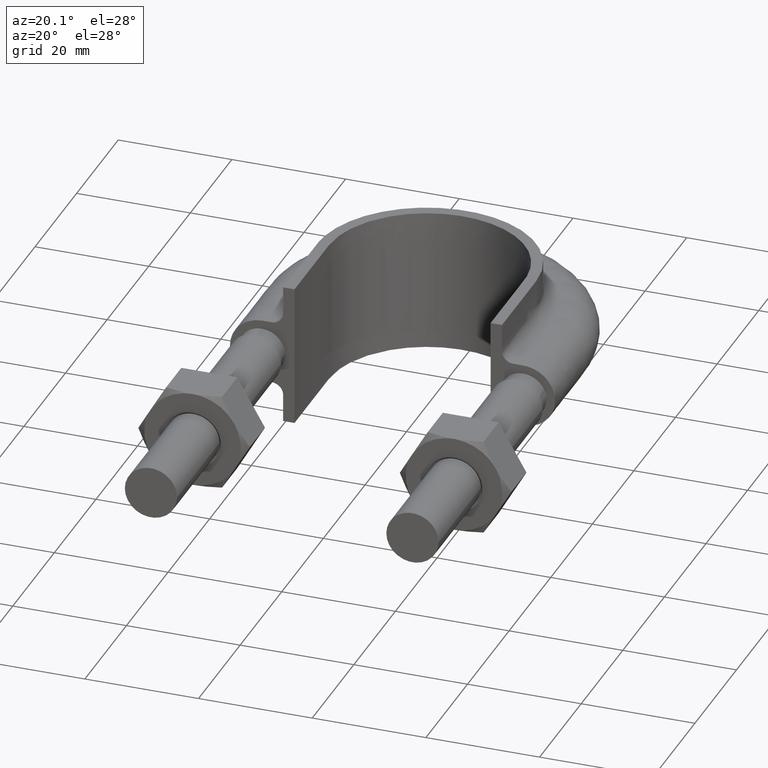
[diagram: clean part render]
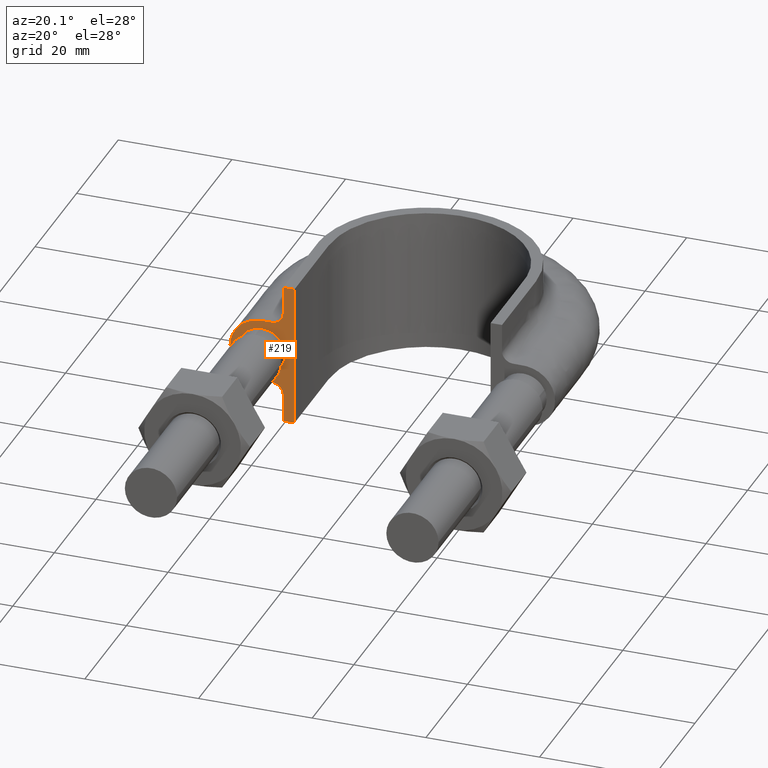
[diagram: same view with one face highlighted and labeled with its STEP entity id]
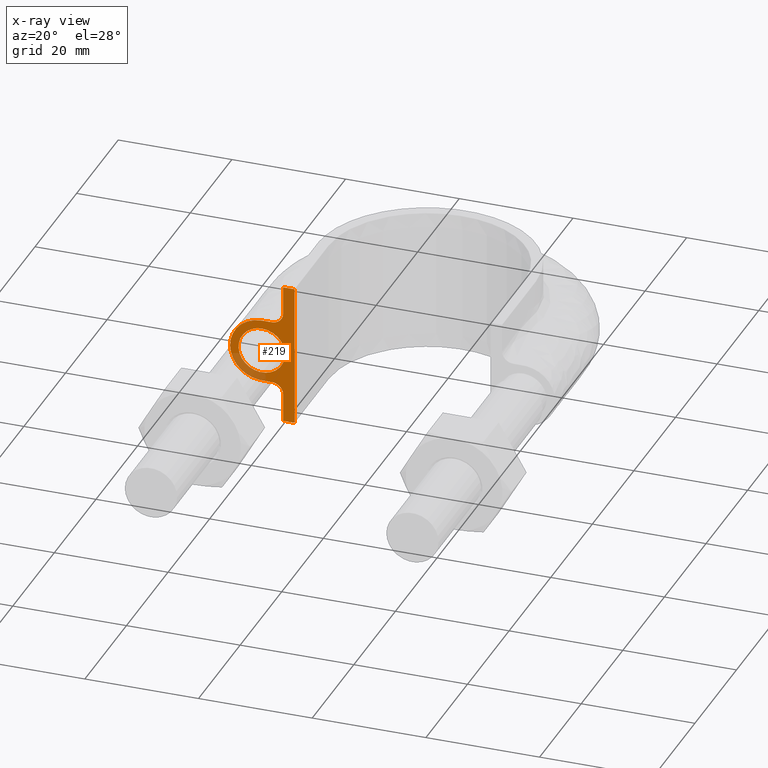
[diagram: x-ray of the same camera — body ghosted, the highlighted face saturated]
A machine part, auxiliary view. The second image highlights one B-rep face of the part: STEP entity #219.
The next image is the same camera in x-ray: the body ghosted, the highlighted face saturated — about 11% of this face is hidden behind the body in this view.
In plain terms, the highlighted planar face has unit normal (0, 1, 0).
Its self-contained STEP definition (entity closure, byte-faithful):
#219 = ADVANCED_FACE( '', ( #296, #297 ), #298, .F. );
#296 = FACE_OUTER_BOUND( '', #468, .T. );
#297 = FACE_BOUND( '', #469, .T. );
#298 = PLANE( '', #470 );
#468 = EDGE_LOOP( '', ( #1465, #1466, #1467, #1468 ) );
#469 = EDGE_LOOP( '', ( #1469 ) );
#470 = AXIS2_PLACEMENT_3D( '', #1470, #1471, #1472 );
#1465 = ORIENTED_EDGE( '', *, *, #2003, .T. );
#1466 = ORIENTED_EDGE( '', *, *, #2004, .F. );
#1467 = ORIENTED_EDGE( '', *, *, #2005, .T. );
#1468 = ORIENTED_EDGE( '', *, *, #2006, .T. );
#1469 = ORIENTED_EDGE( '', *, *, #2007, .T. );
#1470 = CARTESIAN_POINT( '', ( -35.0000000000000, 53.3000000000000, 12.5000000000000 ) );
#1471 = DIRECTION( '', ( 1.83649404852125E-048, 1.00000000000000, 1.49966072182214E-032 ) );
#1472 = DIRECTION( '', ( 1.00000000000000, -3.03858167864314E-064, -1.22460635382238E-016 ) );
#2003 = EDGE_CURVE( '', #2155, #2156, #2157, .T. );
#2004 = EDGE_CURVE( '', #2158, #2156, #2159, .T. );
#2005 = EDGE_CURVE( '', #2158, #2160, #2161, .T. );
#2006 = EDGE_CURVE( '', #2160, #2155, #2162, .T. );
#2007 = EDGE_CURVE( '', #2163, #2163, #2164, .T. );
#2155 = VERTEX_POINT( '', #2405 );
#2156 = VERTEX_POINT( '', #2406 );
#2157 = LINE( '', #2407, #2408 );
#2158 = VERTEX_POINT( '', #2409 );
#2159 = LINE( '', #2410, #2411 );
#2160 = VERTEX_POINT( '', #2412 );
#2161 = B_SPLINE_CURVE_WITH_KNOTS( '', 3, ( #2413, #2414, #2415, #2416, #2417, #2418, #2419, #2420, #2421, #2422, #2423, #2424, #2425, #2426, #2427, #2428, #2429, #2430, #2431, #2432, #2433, #2434, #2435, #2436, #2437, #2438, #2439, #2440, #2441, #2442, #2443 ), .UNSPECIFIED., .F., .F., ( 4, 3, 1, 1, 1, 3, 3, 1, 1, 1, 3, 3, 1, 1, 1, 3, 4 ), ( 1.04083408558608E-017, 0.00230481078821070, 0.00460962157642139, 0.00691443236463208, 0.00921924315284277, 0.0115240539410535, 0.0138288647292641, 0.0161336755174748, 0.0184384863056855, 0.0207432970938962, 0.0230481078821069, 0.0253529186703176, 0.0276577294585283, 0.0299625402467390, 0.0322673510349497, 0.0345721618231603, 0.0368769726113710 ), .UNSPECIFIED. );
#2162 = LINE( '', #2444, #2445 );
#2163 = VERTEX_POINT( '', #2446 );
#2164 = B_SPLINE_CURVE_WITH_KNOTS( '', 3, ( #2447, #2448, #2449, #2450, #2451, #2452, #2453, #2454, #2455, #2456 ), .UNSPECIFIED., .T., .F., ( 4, 1, 1, 1, 1, 1, 1, 4 ), ( 0.000000000000000, 0.00365634574703306, 0.00731269149406611, 0.0109690372410992, 0.0146253829881322, 0.0182817287351653, 0.0219380744821983, 0.0255944202292314 ), .UNSPECIFIED. );
#2405 = CARTESIAN_POINT( '', ( -17.2500000000000, 53.3000000000000, -12.5000000000000 ) );
#2406 = CARTESIAN_POINT( '', ( -17.2500000000000, 53.3000000000000, 12.5000000000000 ) );
#2407 = CARTESIAN_POINT( '', ( -17.2500000000000, 53.3000000000000, -69.9996733561149 ) );
#2408 = VECTOR( '', #3001, 1000.00000000000 );
#2409 = CARTESIAN_POINT( '', ( -19.2500000000000, 53.3000000000000, 12.5000000000000 ) );
#2410 = CARTESIAN_POINT( '', ( -35.0000000000000, 53.3000000000000, 12.5000000000000 ) );
#2411 = VECTOR( '', #3002, 1000.00000000000 );
#2412 = CARTESIAN_POINT( '', ( -19.2500000000000, 53.3000000000000, -12.5000000000000 ) );
#2413 = CARTESIAN_POINT( '', ( -19.2500000000000, 53.3000000000000, 12.5000000000000 ) );
#2414 = CARTESIAN_POINT( '', ( -19.2500000000000, 53.3000000000000, 10.8666666666667 ) );
#2415 = CARTESIAN_POINT( '', ( -19.2500000000000, 53.3000000000000, 9.23333333333333 ) );
#2416 = CARTESIAN_POINT( '', ( -19.2500000000000, 53.3000000000000, 7.60000000000000 ) );
#2417 = CARTESIAN_POINT( '', ( -19.2500000000000, 53.3000000000000, 7.33823584172333 ) );
#2418 = CARTESIAN_POINT( '', ( -19.3541362568359, 53.3000000000000, 6.81470752517000 ) );
#2419 = CARTESIAN_POINT( '', ( -19.7989687109389, 53.3000000000000, 6.14896871093887 ) );
#2420 = CARTESIAN_POINT( '', ( -20.4647075251700, 53.3000000000000, 5.70413625683590 ) );
#2421 = CARTESIAN_POINT( '', ( -20.9882358417233, 53.3000000000000, 5.59999999999999 ) );
#2422 = CARTESIAN_POINT( '', ( -21.2500000000000, 53.3000000000000, 5.59999999999999 ) );
#2423 = CARTESIAN_POINT( '', ( -21.8333333333333, 53.3000000000000, 5.60000000000001 ) );
#2424 = CARTESIAN_POINT( '', ( -22.4166666666667, 53.3000000000000, 5.60000000000001 ) );
#2425 = CARTESIAN_POINT( '', ( -23.0000000000000, 53.3000000000000, 5.60000000000001 ) );
#2426 = CARTESIAN_POINT( '', ( -24.4627416997969, 53.3000000000000, 5.60000000000001 ) );
#2427 = CARTESIAN_POINT( '', ( -27.3882250993908, 53.3000000000000, 4.38822509939087 ) );
#2428 = CARTESIAN_POINT( '', ( -29.2058874503046, 53.3000000000000, 9.94452457394279E-015 ) );
#2429 = CARTESIAN_POINT( '', ( -27.3882250993908, 53.3000000000000, -4.38822509939085 ) );
#2430 = CARTESIAN_POINT( '', ( -24.4627416997969, 53.3000000000000, -5.59999999999999 ) );
#2431 = CARTESIAN_POINT( '', ( -23.0000000000000, 53.3000000000000, -5.59999999999999 ) );
#2432 = CARTESIAN_POINT( '', ( -22.4166666666667, 53.3000000000000, -5.59999999999999 ) );
#2433 = CARTESIAN_POINT( '', ( -21.8333333333333, 53.3000000000000, -5.59999999999999 ) );
#2434 = CARTESIAN_POINT( '', ( -21.2500000000000, 53.3000000000000, -5.59999999999999 ) );
#2435 = CARTESIAN_POINT( '', ( -20.9882358417233, 53.3000000000000, -5.59999999999999 ) );
#2436 = CARTESIAN_POINT( '', ( -20.4647075251700, 53.3000000000000, -5.70413625683590 ) );
#2437 = CARTESIAN_POINT( '', ( -19.7989687109389, 53.3000000000000, -6.14896871093886 ) );
#2438 = CARTESIAN_POINT( '', ( -19.3541362568359, 53.3000000000000, -6.81470752516999 ) );
#2439 = CARTESIAN_POINT( '', ( -19.2500000000000, 53.3000000000000, -7.33823584172332 ) );
#2440 = CARTESIAN_POINT( '', ( -19.2500000000000, 53.3000000000000, -7.59999999999998 ) );
#2441 = CARTESIAN_POINT( '', ( -19.2500000000000, 53.3000000000000, -9.23333333333332 ) );
#2442 = CARTESIAN_POINT( '', ( -19.2500000000000, 53.3000000000000, -10.8666666666666 ) );
#2443 = CARTESIAN_POINT( '', ( -19.2500000000000, 53.3000000000000, -12.5000000000000 ) );
#2444 = CARTESIAN_POINT( '', ( -35.0000000000000, 53.3000000000000, -12.5000000000000 ) );
#2445 = VECTOR( '', #3003, 1000.00000000000 );
#2446 = CARTESIAN_POINT( '', ( -18.9000000000000, 53.3000000000000, 4.33680868994202E-016 ) );
#2447 = CARTESIAN_POINT( '', ( -18.9000000000000, 53.3000000000000, 4.33680868994202E-016 ) );
#2448 = CARTESIAN_POINT( '', ( -18.9000000000000, 53.3000000000000, -1.22184926194408 ) );
#2449 = CARTESIAN_POINT( '', ( -20.0768231851220, 53.3000000000000, -3.66554778583225 ) );
#2450 = CARTESIAN_POINT( '', ( -24.0432697263483, 53.3000000000000, -4.57086332538454 ) );
#2451 = CARTESIAN_POINT( '', ( -27.2241128848102, 53.3000000000000, -2.03422555230246 ) );
#2452 = CARTESIAN_POINT( '', ( -27.2241128848102, 53.3000000000000, 2.03422555230246 ) );
#2453 = CARTESIAN_POINT( '', ( -24.0432697263483, 53.3000000000000, 4.57086332538454 ) );
#2454 = CARTESIAN_POINT( '', ( -20.0768231851220, 53.3000000000000, 3.66554778583225 ) );
#2455 = CARTESIAN_POINT( '', ( -18.9000000000000, 53.3000000000000, 1.22184926194408 ) );
#2456 = CARTESIAN_POINT( '', ( -18.9000000000000, 53.3000000000000, 4.33680868994202E-016 ) );
#3001 = DIRECTION( '', ( 0.000000000000000, 0.000000000000000, 1.00000000000000 ) );
#3002 = DIRECTION( '', ( 1.00000000000000, -1.22460635382238E-016, 0.000000000000000 ) );
#3003 = DIRECTION( '', ( 1.00000000000000, -1.22460635382238E-016, 0.000000000000000 ) );